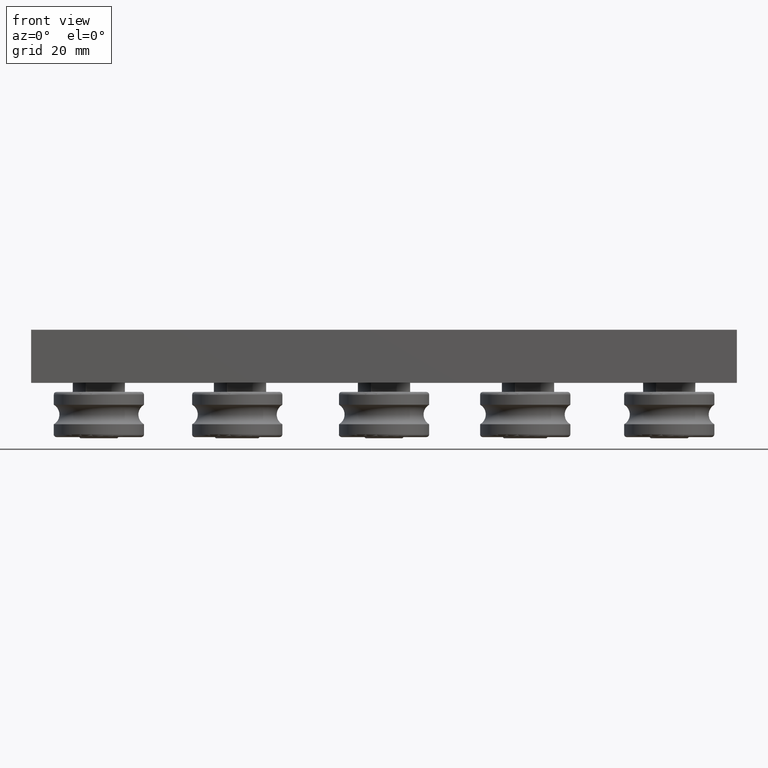
[diagram: clean part render]
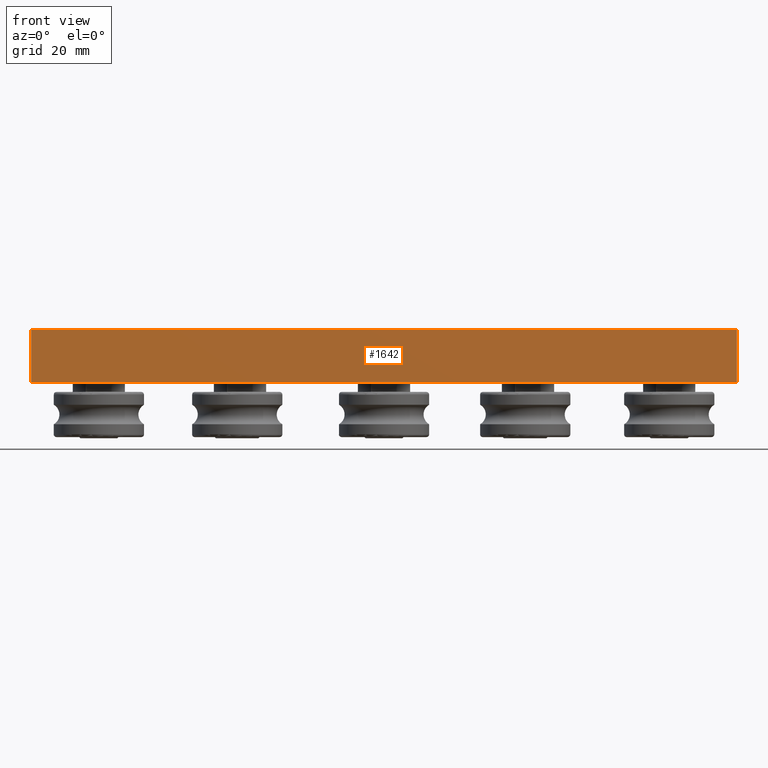
[diagram: same view with one face highlighted and labeled with its STEP entity id]
A machine part, front view. The second image highlights one B-rep face of the part: STEP entity #1642.
In plain terms, the highlighted planar face has unit normal (0, -1, 0).
Its self-contained STEP definition (entity closure, byte-faithful):
#197=PLANE('',#1918);
#266=FACE_OUTER_BOUND('',#383,.T.);
#383=EDGE_LOOP('',(#1248,#1249,#1250,#1251));
#503=LINE('',#2740,#609);
#507=LINE('',#2748,#613);
#513=LINE('',#2759,#619);
#514=LINE('',#2761,#620);
#609=VECTOR('',#2204,10.);
#613=VECTOR('',#2210,10.);
#619=VECTOR('',#2220,10.);
#620=VECTOR('',#2223,10.);
#830=VERTEX_POINT('',#2738);
#831=VERTEX_POINT('',#2739);
#834=VERTEX_POINT('',#2747);
#837=VERTEX_POINT('',#2757);
#985=EDGE_CURVE('',#830,#831,#503,.T.);
#989=EDGE_CURVE('',#834,#831,#507,.T.);
#995=EDGE_CURVE('',#830,#837,#513,.T.);
#996=EDGE_CURVE('',#834,#837,#514,.T.);
#1248=ORIENTED_EDGE('',*,*,#995,.T.);
#1249=ORIENTED_EDGE('',*,*,#996,.F.);
#1250=ORIENTED_EDGE('',*,*,#989,.T.);
#1251=ORIENTED_EDGE('',*,*,#985,.F.);
#1642=ADVANCED_FACE('',(#266),#197,.T.);
#1918=AXIS2_PLACEMENT_3D('',#2760,#2221,#2222);
#2204=DIRECTION('',(-1.,-1.06581410364015E-16,0.));
#2210=DIRECTION('',(0.,0.,-1.));
#2220=DIRECTION('',(0.,0.,1.));
#2221=DIRECTION('center_axis',(1.06581410364015E-16,-1.,0.));
#2222=DIRECTION('ref_axis',(1.,1.06581410364015E-16,0.));
#2223=DIRECTION('',(1.,1.06581410364015E-16,0.));
#2738=CARTESIAN_POINT('',(62.5,-14.,-4.7));
#2739=CARTESIAN_POINT('',(-62.5,-14.,-4.7));
#2740=CARTESIAN_POINT('',(62.5,-14.,-4.7));
#2747=CARTESIAN_POINT('',(-62.5,-14.,4.7));
#2748=CARTESIAN_POINT('',(-62.5,-14.,0.));
#2757=CARTESIAN_POINT('',(62.5,-14.,4.7));
#2759=CARTESIAN_POINT('',(62.5,-14.,0.));
#2760=CARTESIAN_POINT('Origin',(-62.5,-14.,0.));
#2761=CARTESIAN_POINT('',(62.5,-14.,4.7));